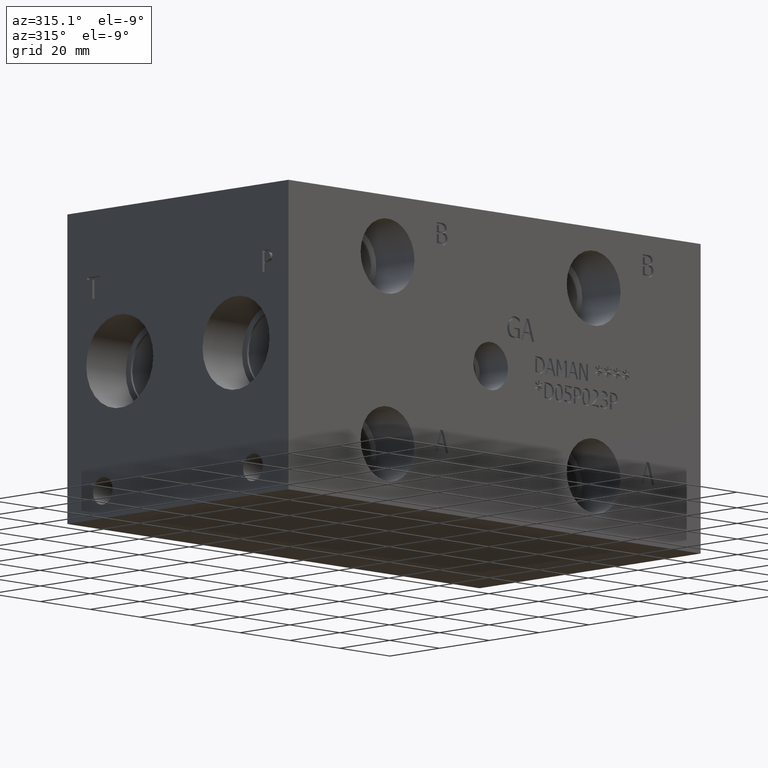
[diagram: clean part render]
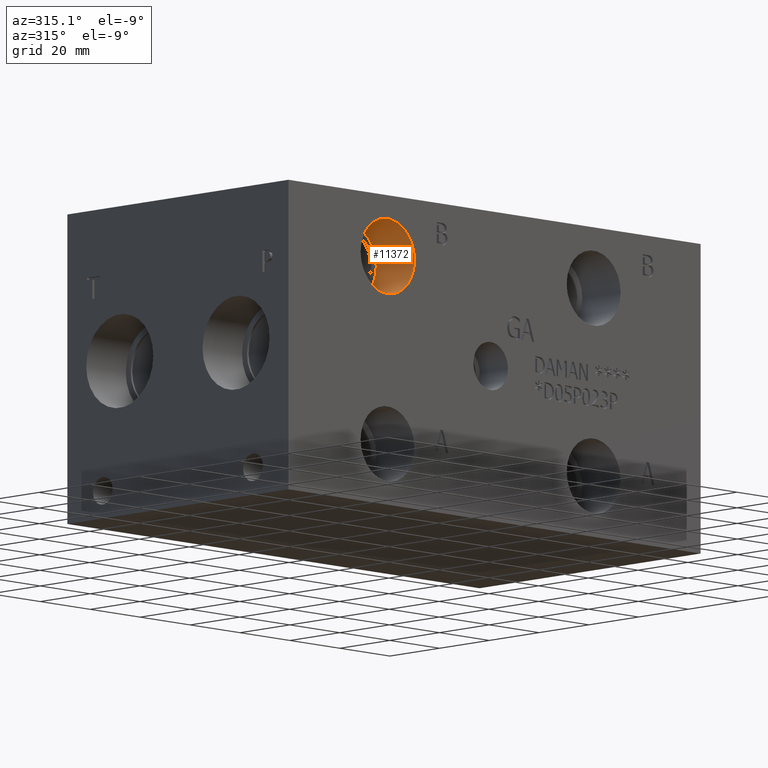
[diagram: same view with one face highlighted and labeled with its STEP entity id]
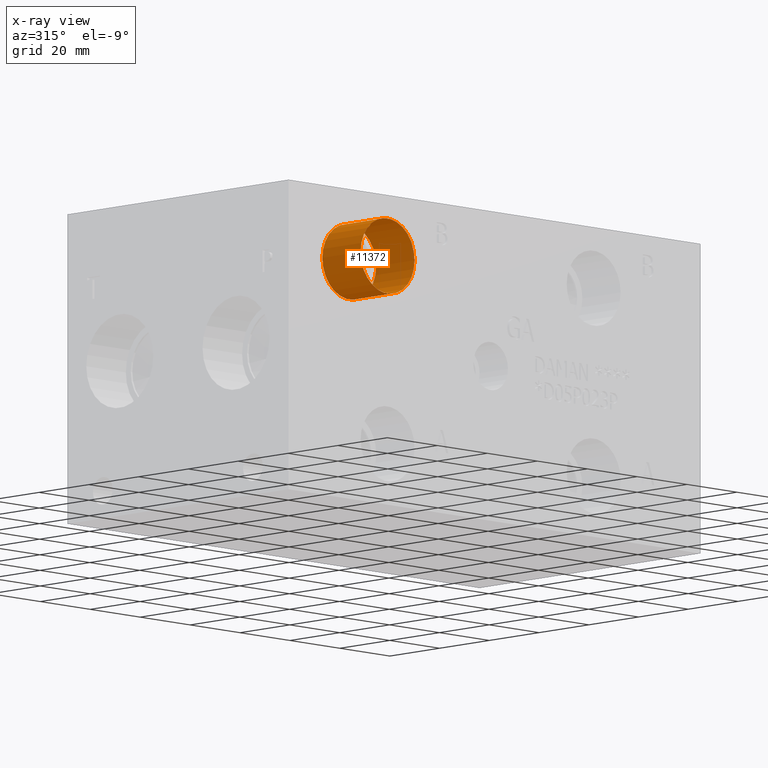
[diagram: x-ray of the same camera — body ghosted, the highlighted face saturated]
A machine part, auxiliary view. The second image highlights one B-rep face of the part: STEP entity #11372.
The next image is the same camera in x-ray: the body ghosted, the highlighted face saturated — about 0% of this face is hidden behind the body in this view.
In plain terms, the highlighted cylindrical surface (bore or boss wall) has radius 10.795 mm, axis along (0, -1, 0).
Its self-contained STEP definition (entity closure, byte-faithful):
#34=CYLINDRICAL_SURFACE('',#11894,10.795);
#97=CIRCLE('',#11475,10.795);
#98=CIRCLE('',#11476,10.795);
#171=CIRCLE('',#11891,10.795);
#172=CIRCLE('',#11892,10.795);
#1358=FACE_OUTER_BOUND('',#2011,.T.);
#2011=EDGE_LOOP('',(#9706,#9707,#9708,#9709,#9710,#9711));
#3127=LINE('',#19296,#4203);
#4203=VECTOR('',#13974,10.795);
#4461=VERTEX_POINT('',#15042);
#4462=VERTEX_POINT('',#15043);
#5216=VERTEX_POINT('',#19289);
#5217=VERTEX_POINT('',#19290);
#5575=EDGE_CURVE('',#4461,#4462,#97,.T.);
#5576=EDGE_CURVE('',#4462,#4461,#98,.T.);
#6753=EDGE_CURVE('',#5216,#5217,#171,.T.);
#6754=EDGE_CURVE('',#5217,#5216,#172,.T.);
#6756=EDGE_CURVE('',#4462,#5217,#3127,.T.);
#9706=ORIENTED_EDGE('',*,*,#5575,.F.);
#9707=ORIENTED_EDGE('',*,*,#5576,.F.);
#9708=ORIENTED_EDGE('',*,*,#6756,.T.);
#9709=ORIENTED_EDGE('',*,*,#6753,.F.);
#9710=ORIENTED_EDGE('',*,*,#6754,.F.);
#9711=ORIENTED_EDGE('',*,*,#6756,.F.);
#11372=ADVANCED_FACE('',(#1358),#34,.F.);
#11475=AXIS2_PLACEMENT_3D('',#15044,#12306,#12307);
#11476=AXIS2_PLACEMENT_3D('',#15045,#12308,#12309);
#11891=AXIS2_PLACEMENT_3D('',#19291,#13966,#13967);
#11892=AXIS2_PLACEMENT_3D('',#19292,#13968,#13969);
#11894=AXIS2_PLACEMENT_3D('',#19295,#13972,#13973);
#12306=DIRECTION('center_axis',(0.,1.,0.));
#12307=DIRECTION('ref_axis',(1.,0.,0.));
#12308=DIRECTION('center_axis',(0.,1.,0.));
#12309=DIRECTION('ref_axis',(1.,0.,0.));
#13966=DIRECTION('center_axis',(0.,-1.,0.));
#13967=DIRECTION('ref_axis',(1.,0.,0.));
#13968=DIRECTION('center_axis',(0.,-1.,0.));
#13969=DIRECTION('ref_axis',(1.,0.,0.));
#13972=DIRECTION('center_axis',(0.,-1.,0.));
#13973=DIRECTION('ref_axis',(1.,0.,0.));
#13974=DIRECTION('',(0.,1.,0.));
#15042=CARTESIAN_POINT('',(50.4698,0.,71.4248));
#15043=CARTESIAN_POINT('',(28.8798,0.,71.4248));
#15044=CARTESIAN_POINT('Origin',(39.6748,0.,71.4248));
#15045=CARTESIAN_POINT('Origin',(39.6748,0.,71.4248));
#19289=CARTESIAN_POINT('',(50.4698,15.367,71.4248));
#19290=CARTESIAN_POINT('',(28.8798,15.367,71.4248));
#19291=CARTESIAN_POINT('Origin',(39.6748,15.367,71.4248));
#19292=CARTESIAN_POINT('Origin',(39.6748,15.367,71.4248));
#19295=CARTESIAN_POINT('Origin',(39.6748,7.6835,71.4248));
#19296=CARTESIAN_POINT('',(28.8798,7.6835,71.4248));